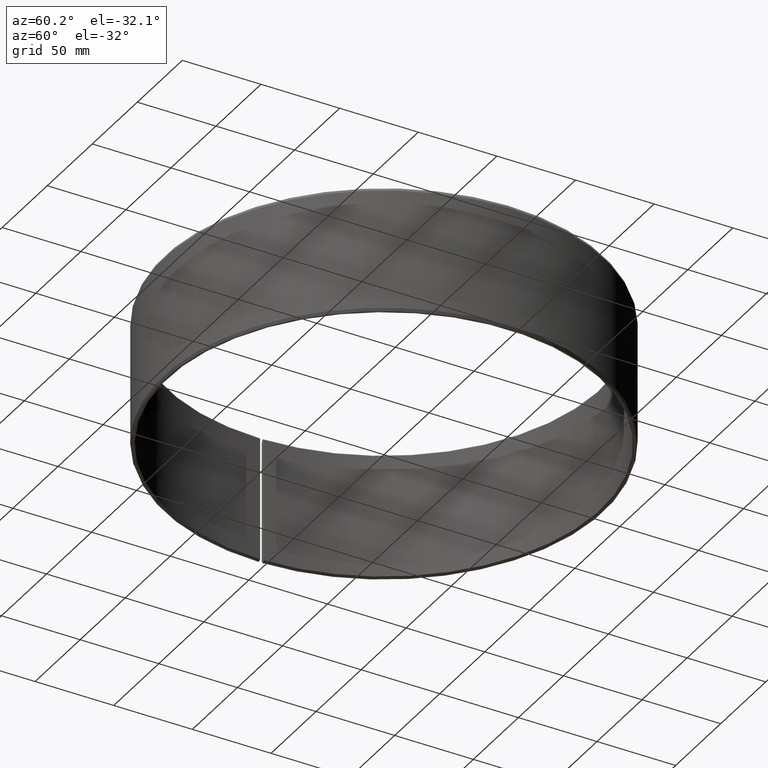
[diagram: clean part render]
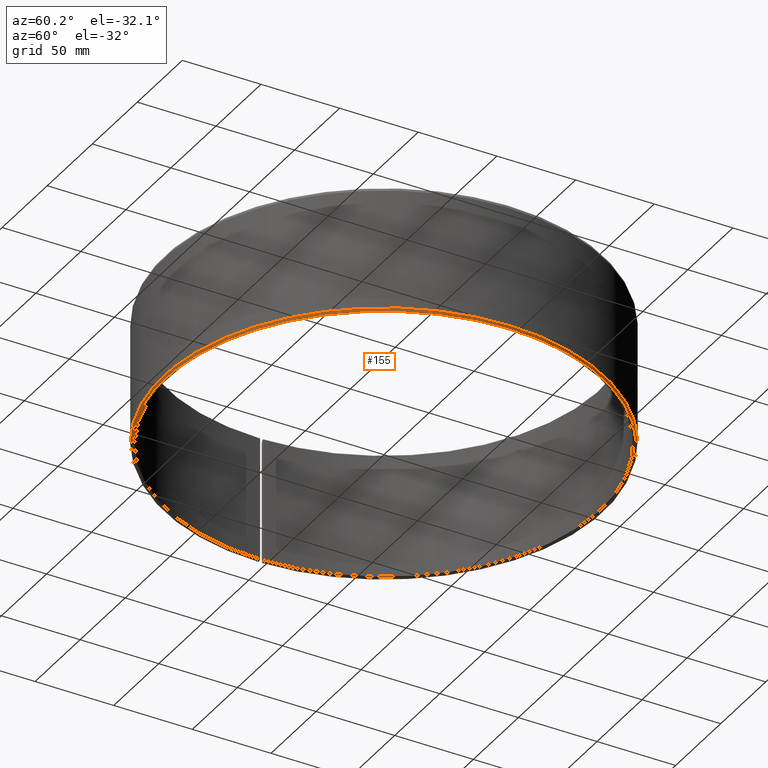
[diagram: same view with one face highlighted and labeled with its STEP entity id]
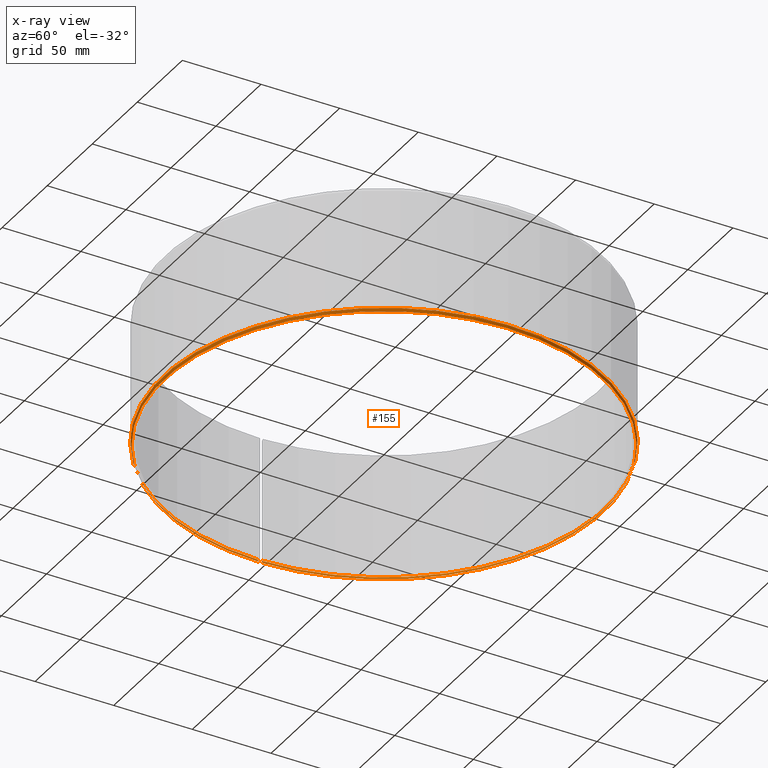
[diagram: x-ray of the same camera — body ghosted, the highlighted face saturated]
A machine part, auxiliary view. The second image highlights one B-rep face of the part: STEP entity #155.
The next image is the same camera in x-ray: the body ghosted, the highlighted face saturated — about 0% of this face is hidden behind the body in this view.
In plain terms, the highlighted conical surface has half-angle 20 deg.
Its self-contained STEP definition (entity closure, byte-faithful):
#155=ADVANCED_FACE('',(#170),#171,.T.);
#170=FACE_OUTER_BOUND('',#196,.T.);
#171=CONICAL_SURFACE('',#197,0.139344853578321,0.349065850398867);
#196=EDGE_LOOP('',(#231,#232,#233,#234));
#197=AXIS2_PLACEMENT_3D('',#235,#236,#237);
#231=ORIENTED_EDGE('',*,*,#309,.T.);
#232=ORIENTED_EDGE('',*,*,#310,.F.);
#233=ORIENTED_EDGE('',*,*,#306,.F.);
#234=ORIENTED_EDGE('',*,*,#311,.T.);
#235=CARTESIAN_POINT('',(-6.93889390390723E-018,-6.93889390390723E-018,1.53956708492941E-017));
#236=DIRECTION('',(-6.12323399573677E-017,0.0,1.0));
#237=DIRECTION('',(1.0,0.0,6.12323399573677E-017));
#306=EDGE_CURVE('',#336,#337,#338,.T.);
#309=EDGE_CURVE('',#341,#342,#343,.T.);
#310=EDGE_CURVE('',#337,#342,#344,.T.);
#311=EDGE_CURVE('',#336,#341,#345,.T.);
#336=VERTEX_POINT('',#382);
#337=VERTEX_POINT('',#383);
#338=CIRCLE('',#384,0.139344853578321);
#341=VERTEX_POINT('',#389);
#342=VERTEX_POINT('',#390);
#343=CIRCLE('',#391,0.14);
#344=LINE('',#392,#393);
#345=LINE('',#394,#395);
#382=CARTESIAN_POINT('',(0.00243190301959261,0.139323630682189,1.55445819617332E-017));
#383=CARTESIAN_POINT('',(-6.93889390390723E-018,0.139344853578321,1.53956708492941E-017));
#384=AXIS2_PLACEMENT_3D('',#586,#587,#588);
#389=CARTESIAN_POINT('',(0.00244333690121969,0.139978677321895,0.0018));
#390=CARTESIAN_POINT('',(-6.93889390390723E-018,0.14,0.0018));
#391=AXIS2_PLACEMENT_3D('',#591,#592,#593);
#392=CARTESIAN_POINT('',(-6.93889390390723E-018,0.139344853578321,1.53956708492941E-017));
#393=VECTOR('',#594,1.0);
#394=CARTESIAN_POINT('',(0.00243190301959261,0.139323630682189,1.55445819617332E-017));
#395=VECTOR('',#595,1.0);
#586=CARTESIAN_POINT('',(-6.93889390390723E-018,-6.93889390390723E-018,1.53956708492941E-017));
#587=DIRECTION('',(6.12323399573677E-017,0.0,-1.0));
#588=DIRECTION('',(-1.0,0.0,-6.12323399573677E-017));
#591=CARTESIAN_POINT('',(-6.93889390390723E-018,-6.93889390390723E-018,0.0018));
#592=DIRECTION('',(6.12323399573677E-017,0.0,-1.0));
#593=DIRECTION('',(-1.0,0.0,-6.12323399573677E-017));
#594=DIRECTION('',(0.0,0.34202014332567,0.939692620785908));
#595=DIRECTION('',(0.00596907455105756,0.34196805200123,0.939692620785908));